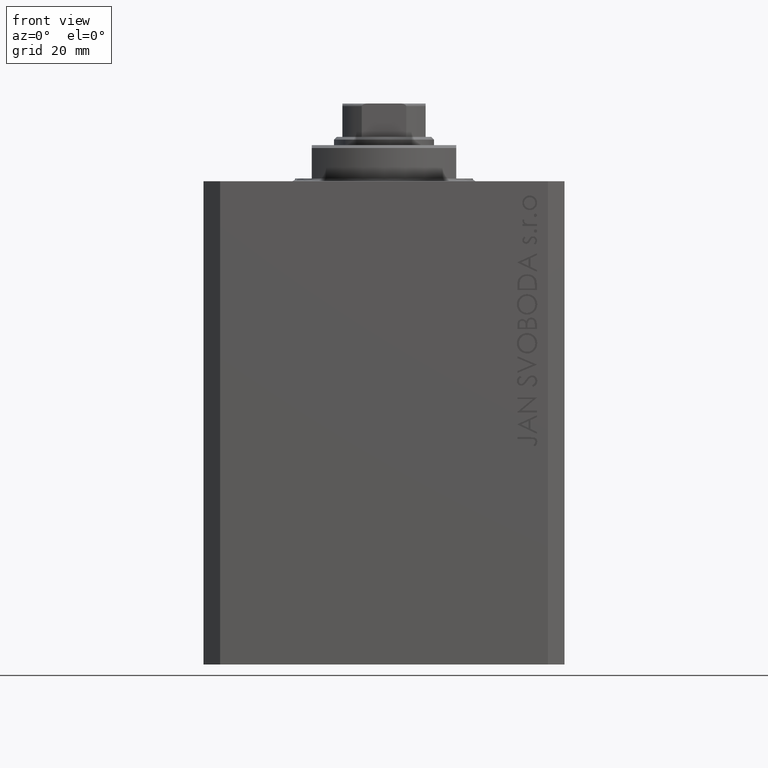
[diagram: clean part render]
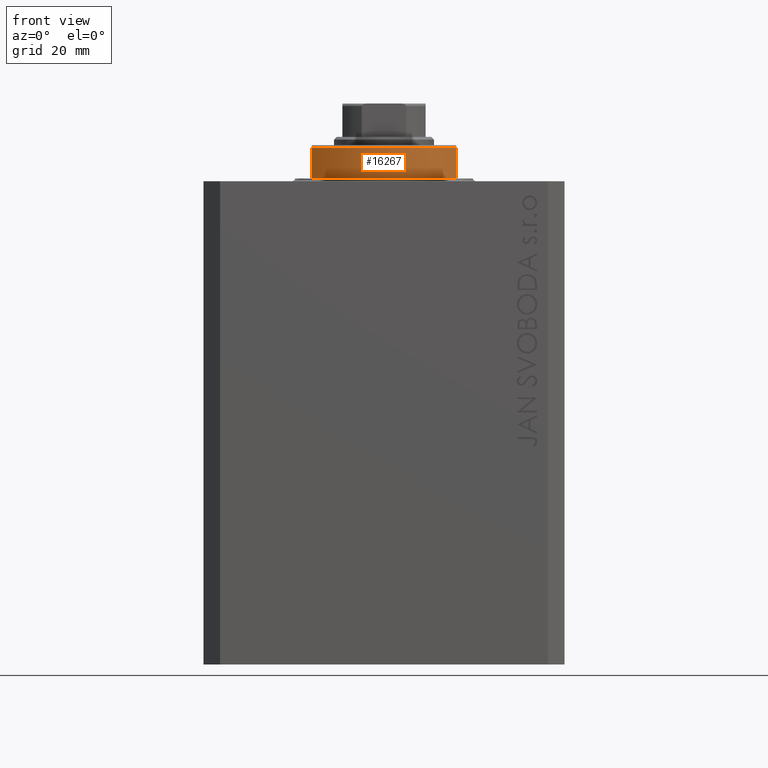
[diagram: same view with one face highlighted and labeled with its STEP entity id]
A machine part, front view. The second image highlights one B-rep face of the part: STEP entity #16267.
In plain terms, the highlighted cylindrical surface (partial cylindrical patch) has radius 16 mm, axis along (0, 0, -1).
Its self-contained STEP definition (entity closure, byte-faithful):
#384 = EDGE_CURVE ( 'NONE', #35825, #9640, #27376, .T. ) ;
#574 = VECTOR ( 'NONE', #14782, 1000.000000000000000 ) ;
#1243 = AXIS2_PLACEMENT_3D ( 'NONE', #40057, #21839, #32866 ) ;
#2787 = CARTESIAN_POINT ( 'NONE',  ( 13.00000000000000000, -9.327379053088813876, -6.500000000000000000 ) ) ;
#3431 = DIRECTION ( 'NONE',  ( -0.000000000000000000, -0.000000000000000000, 1.000000000000000000 ) ) ;
#6448 = CARTESIAN_POINT ( 'NONE',  ( -13.00000000000000000, -9.327379053088815652, -6.000000000000023981 ) ) ;
#6573 = CIRCLE ( 'NONE', #1243, 16.00000000000000000 ) ;
#6669 = AXIS2_PLACEMENT_3D ( 'NONE', #33390, #40583, #8432 ) ;
#8432 = DIRECTION ( 'NONE',  ( -1.000000000000000000, 0.000000000000000000, 0.000000000000000000 ) ) ;
#9640 = VERTEX_POINT ( 'NONE', #37000 ) ;
#10519 = CARTESIAN_POINT ( 'NONE',  ( -13.00000000000000000, -9.327379053088815652, -0.4999999999999995559 ) ) ;
#11120 = EDGE_CURVE ( 'NONE', #40393, #40418, #6573, .T. ) ;
#13140 = ORIENTED_EDGE ( 'NONE', *, *, #384, .T. ) ;
#14782 = DIRECTION ( 'NONE',  ( 0.000000000000000000, 0.000000000000000000, -1.000000000000000000 ) ) ;
#15626 = EDGE_CURVE ( 'NONE', #40418, #35825, #39586, .T. ) ;
#16267 = ADVANCED_FACE ( 'NONE', ( #36997 ), #47100, .T. ) ;
#21128 = ORIENTED_EDGE ( 'NONE', *, *, #40738, .F. ) ;
#21839 = DIRECTION ( 'NONE',  ( -0.000000000000000000, -0.000000000000000000, -1.000000000000000000 ) ) ;
#21849 = DIRECTION ( 'NONE',  ( 0.000000000000000000, 0.000000000000000000, -1.000000000000000000 ) ) ;
#25292 = CARTESIAN_POINT ( 'NONE',  ( 0.000000000000000000, 0.000000000000000000, -6.500000000000000000 ) ) ;
#25663 = EDGE_LOOP ( 'NONE', ( #21128, #34756, #46287, #13140 ) ) ;
#27376 = CIRCLE ( 'NONE', #6669, 16.00000000000000000 ) ;
#28047 = CARTESIAN_POINT ( 'NONE',  ( 13.00000000000000000, -9.327379053088815652, -0.4999999999999995559 ) ) ;
#30623 = AXIS2_PLACEMENT_3D ( 'NONE', #25292, #3431, #44207 ) ;
#32763 = LINE ( 'NONE', #2787, #574 ) ;
#32866 = DIRECTION ( 'NONE',  ( 1.000000000000000000, 0.000000000000000000, 0.000000000000000000 ) ) ;
#33390 = CARTESIAN_POINT ( 'NONE',  ( 0.000000000000000000, 0.000000000000000000, -6.000000000000023981 ) ) ;
#34756 = ORIENTED_EDGE ( 'NONE', *, *, #11120, .T. ) ;
#35761 = CARTESIAN_POINT ( 'NONE',  ( -13.00000000000000000, -9.327379053088813876, -6.500000000000000000 ) ) ;
#35825 = VERTEX_POINT ( 'NONE', #6448 ) ;
#36997 = FACE_OUTER_BOUND ( 'NONE', #25663, .T. ) ;
#37000 = CARTESIAN_POINT ( 'NONE',  ( 13.00000000000000000, -9.327379053088815652, -6.000000000000023981 ) ) ;
#39586 = LINE ( 'NONE', #35761, #47477 ) ;
#40057 = CARTESIAN_POINT ( 'NONE',  ( 0.000000000000000000, 0.000000000000000000, -0.4999999999999995559 ) ) ;
#40393 = VERTEX_POINT ( 'NONE', #28047 ) ;
#40418 = VERTEX_POINT ( 'NONE', #10519 ) ;
#40583 = DIRECTION ( 'NONE',  ( 0.000000000000000000, 0.000000000000000000, 1.000000000000000000 ) ) ;
#40738 = EDGE_CURVE ( 'NONE', #40393, #9640, #32763, .T. ) ;
#44207 = DIRECTION ( 'NONE',  ( 1.000000000000000000, 0.000000000000000000, 0.000000000000000000 ) ) ;
#46287 = ORIENTED_EDGE ( 'NONE', *, *, #15626, .T. ) ;
#47100 = CYLINDRICAL_SURFACE ( 'NONE', #30623, 16.00000000000000000 ) ;
#47477 = VECTOR ( 'NONE', #21849, 1000.000000000000000 ) ;